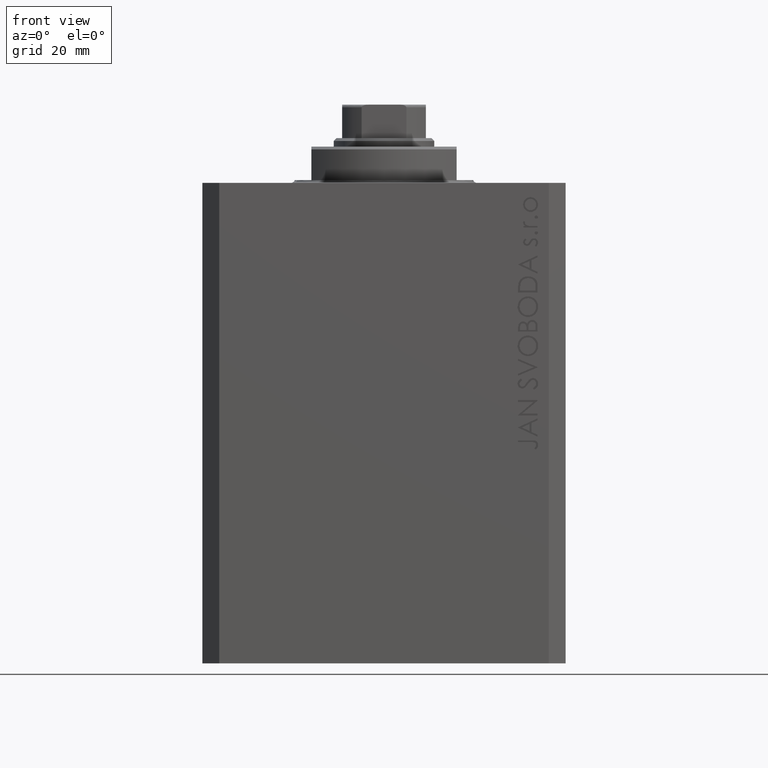
[diagram: clean part render]
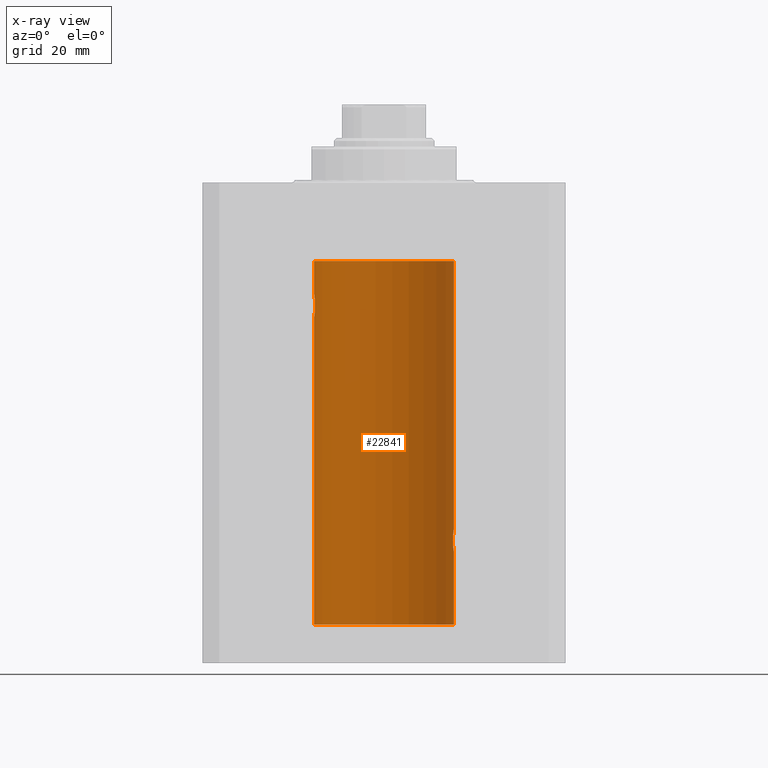
[diagram: x-ray — body ghosted, one internal face saturated and labeled with its STEP entity id]
A machine part, front view, then the same camera in x-ray: the body is ghosted and one INTERNAL B-rep face — a face not visible from any outside direction — is saturated and labeled: STEP entity #22841.
In plain terms, the highlighted cylindrical surface (partial cylindrical patch) has radius 12.5 mm, axis along (0, 0, 1).
Its self-contained STEP definition (entity closure, byte-faithful):
#9 = CARTESIAN_POINT ( 'NONE',  ( -12.46009879577771606, 1.003863686549169465, -23.73470742397611843 ) ) ;
#394 = EDGE_CURVE ( 'NONE', #12612, #40203, #45457, .T. ) ;
#573 = LINE ( 'NONE', #15351, #39610 ) ;
#1056 = CARTESIAN_POINT ( 'NONE',  ( 12.49788668346400300, 0.2632864803365712048, -62.01308975838333026 ) ) ;
#3327 = CARTESIAN_POINT ( 'NONE',  ( -12.33897869807161385, 1.999901172190678089, -21.73788193668374547 ) ) ;
#3564 = CARTESIAN_POINT ( 'NONE',  ( -12.33895470450623044, 2.000049200055401766, -22.12992629360264729 ) ) ;
#4030 = CARTESIAN_POINT ( 'NONE',  ( -12.43034574091277911, 1.321095788880539024, -23.50733550364322255 ) ) ;
#4167 = CARTESIAN_POINT ( 'NONE',  ( 12.35520276972935250, 1.897773362058238655, -63.35528278634336630 ) ) ;
#4258 = CARTESIAN_POINT ( 'NONE',  ( -12.35517291625592051, 1.897967064543089721, -22.64415233770293412 ) ) ;
#4660 = DIRECTION ( 'NONE',  ( 0.000000000000000000, 0.000000000000000000, 1.000000000000000000 ) ) ;
#5695 = EDGE_CURVE ( 'NONE', #17318, #22749, #45895, .T. ) ;
#5935 = VERTEX_POINT ( 'NONE', #33483 ) ;
#6613 = CARTESIAN_POINT ( 'NONE',  ( 12.50000000000000000, 0.000000000000000000, -13.99999999999999822 ) ) ;
#7138 = CARTESIAN_POINT ( 'NONE',  ( -12.40913174964213184, 1.507394620545641439, -23.32102833500698225 ) ) ;
#7604 = CARTESIAN_POINT ( 'NONE',  ( -12.44082361696003503, 1.219754986802281449, -20.40963319990594016 ) ) ;
#7831 = CARTESIAN_POINT ( 'NONE',  ( -12.46909283808506430, 0.8868029758979402155, -23.79742491916155345 ) ) ;
#7961 = CARTESIAN_POINT ( 'NONE',  ( 12.46910683544639120, 0.8866026273585023709, -62.20247863689696288 ) ) ;
#8459 = DIRECTION ( 'NONE',  ( 0.000000000000000000, 0.000000000000000000, 1.000000000000000000 ) ) ;
#8476 = CARTESIAN_POINT ( 'NONE',  ( 12.43016561391613095, 1.322713721413880661, -65.50578877836699121 ) ) ;
#8570 = VERTEX_POINT ( 'NONE', #14244 ) ;
#8672 = CARTESIAN_POINT ( 'NONE',  ( 12.40916530024876785, 1.507117913375715768, -62.67865955049006743 ) ) ;
#10737 = CARTESIAN_POINT ( 'NONE',  ( -12.48390768591463207, 0.6455696738844916016, -20.10252270298193977 ) ) ;
#10965 = CARTESIAN_POINT ( 'NONE',  ( -12.49789934882883458, 0.2624928479599910047, -20.01301208516349917 ) ) ;
#11605 = CARTESIAN_POINT ( 'NONE',  ( 12.37760587642916299, 1.747868572747719229, -65.00639653168998677 ) ) ;
#11709 = ORIENTED_EDGE ( 'NONE', *, *, #394, .T. ) ;
#11876 = AXIS2_PLACEMENT_3D ( 'NONE', #44319, #33566, #18987 ) ;
#12101 = AXIS2_PLACEMENT_3D ( 'NONE', #25933, #8459, #26867 ) ;
#12305 = CARTESIAN_POINT ( 'NONE',  ( 12.44079900692651108, 1.220007525301739948, -65.59017579083668181 ) ) ;
#12612 = VERTEX_POINT ( 'NONE', #15336 ) ;
#13670 = ORIENTED_EDGE ( 'NONE', *, *, #38098, .F. ) ;
#13713 = CARTESIAN_POINT ( 'NONE',  ( 12.33896267925302759, 2.000000000000247802, -64.00000000000000000 ) ) ;
#14072 = CARTESIAN_POINT ( 'NONE',  ( -12.37018026341338839, 1.797558627508998086, -22.88656313533016373 ) ) ;
#14207 = EDGE_CURVE ( 'NONE', #31801, #5935, #39259, .T. ) ;
#14244 = CARTESIAN_POINT ( 'NONE',  ( -12.50000000000000000, 1.530808498934191521E-15, -13.99999999999999822 ) ) ;
#14554 = CARTESIAN_POINT ( 'NONE',  ( -12.39873273758732175, 1.598680238462371062, -20.77033506126851137 ) ) ;
#15336 = CARTESIAN_POINT ( 'NONE',  ( 12.50000000000000000, 0.000000000000000000, -79.09999999999999432 ) ) ;
#15351 = CARTESIAN_POINT ( 'NONE',  ( -12.50000000000000000, 1.530808498934191521E-15, -79.09999999999999432 ) ) ;
#15879 = CARTESIAN_POINT ( 'NONE',  ( 12.48390005916862933, 0.6457215011736524568, -65.89742771554266199 ) ) ;
#16012 = EDGE_LOOP ( 'NONE', ( #13670, #30904, #11709, #27009, #21327, #29391, #36140, #27701, #35973 ) ) ;
#17318 = VERTEX_POINT ( 'NONE', #13713 ) ;
#17814 = CARTESIAN_POINT ( 'NONE',  ( 12.50000000000000000, -7.266355570171783942E-23, -62.00000000000000711 ) ) ;
#17874 = CARTESIAN_POINT ( 'NONE',  ( -12.44076681548080288, 1.220297236145718944, -23.58991408680628155 ) ) ;
#18115 = CARTESIAN_POINT ( 'NONE',  ( -12.34922241902463114, 1.935814255713574239, -22.51937350851555308 ) ) ;
#18582 = CARTESIAN_POINT ( 'NONE',  ( -12.49788564268284041, 0.2633501011236127343, -23.98690384766255335 ) ) ;
#18716 = CARTESIAN_POINT ( 'NONE',  ( 12.33896267925302581, 2.000000000000248246, -63.86934705949917657 ) ) ;
#18804 = CARTESIAN_POINT ( 'NONE',  ( -12.34781876294798053, 1.947190906025043633, -21.47436412829509678 ) ) ;
#18904 = VERTEX_POINT ( 'NONE', #6613 ) ;
#18987 = DIRECTION ( 'NONE',  ( 1.000000000000000000, 0.000000000000000000, 0.000000000000000000 ) ) ;
#19217 = DIRECTION ( 'NONE',  ( 1.000000000000000000, 0.000000000000000000, 0.000000000000000000 ) ) ;
#19223 = CARTESIAN_POINT ( 'NONE',  ( 12.49789833780794446, 0.2625555164371020100, -65.98698170822146380 ) ) ;
#19741 = AXIS2_PLACEMENT_3D ( 'NONE', #45006, #4660, #19217 ) ;
#21327 = ORIENTED_EDGE ( 'NONE', *, *, #5695, .T. ) ;
#21480 = CARTESIAN_POINT ( 'NONE',  ( -12.37922086519035325, 1.734998657226764829, -23.00335814299181436 ) ) ;
#22136 = CARTESIAN_POINT ( 'NONE',  ( 12.34779119491631150, 1.947363444907009411, -64.52502775168252924 ) ) ;
#22185 = CARTESIAN_POINT ( 'NONE',  ( -12.48983485452574982, 0.5201193324741355539, -23.93561774521849372 ) ) ;
#22323 = CARTESIAN_POINT ( 'NONE',  ( 12.37021546997940113, 1.797317011867403114, -63.11295119741077997 ) ) ;
#22408 = CARTESIAN_POINT ( 'NONE',  ( -12.50000000000000000, 1.867773856434666690E-17, -20.00000000000000000 ) ) ;
#22543 = CARTESIAN_POINT ( 'NONE',  ( 12.50000000000000355, 0.1306079576516675778, -62.00000000000000000 ) ) ;
#22572 = CYLINDRICAL_SURFACE ( 'NONE', #11876, 12.50000000000000000 ) ;
#22749 = VERTEX_POINT ( 'NONE', #17814 ) ;
#22779 = CARTESIAN_POINT ( 'NONE',  ( 12.34924836377099666, 1.935649219704934421, -63.48002062127162759 ) ) ;
#22841 = ADVANCED_FACE ( 'NONE', ( #33327 ), #22572, .F. ) ;
#22986 = DIRECTION ( 'NONE',  ( -0.000000000000000000, -0.000000000000000000, 1.000000000000000000 ) ) ;
#23241 = CARTESIAN_POINT ( 'NONE',  ( 12.39867611624532806, 1.590019252152828910, -62.77984495929611342 ) ) ;
#23492 = CARTESIAN_POINT ( 'NONE',  ( 12.50000000000000000, 0.000000000000000000, -79.09999999999999432 ) ) ;
#23722 = EDGE_CURVE ( 'NONE', #40203, #17318, #31902, .T. ) ;
#24644 = DIRECTION ( 'NONE',  ( -0.000000000000000000, -0.000000000000000000, 1.000000000000000000 ) ) ;
#25534 = CARTESIAN_POINT ( 'NONE',  ( -12.34109209020652465, 1.986986967296539897, -22.26269462454597914 ) ) ;
#25758 = CARTESIAN_POINT ( 'NONE',  ( -12.46903010196599304, 0.8876934327478135378, -20.20300788371381984 ) ) ;
#25933 = CARTESIAN_POINT ( 'NONE',  ( 0.000000000000000000, 0.000000000000000000, -13.99999999999999822 ) ) ;
#26391 = CARTESIAN_POINT ( 'NONE',  ( 12.50000000000000000, 0.000000000000000000, -79.09999999999999432 ) ) ;
#26433 = VECTOR ( 'NONE', #44310, 1000.000000000000000 ) ;
#26765 = EDGE_CURVE ( 'NONE', #12612, #38254, #34232, .T. ) ;
#26867 = DIRECTION ( 'NONE',  ( 1.000000000000000000, 0.000000000000000000, 0.000000000000000000 ) ) ;
#26883 = CARTESIAN_POINT ( 'NONE',  ( 12.39869754437268767, 1.598954131913722820, -65.22932152813012863 ) ) ;
#27009 = ORIENTED_EDGE ( 'NONE', *, *, #23722, .T. ) ;
#27701 = ORIENTED_EDGE ( 'NONE', *, *, #37930, .F. ) ;
#28475 = LINE ( 'NONE', #39925, #41901 ) ;
#28653 = CARTESIAN_POINT ( 'NONE',  ( -12.48990118705761532, 0.5184196815546056047, -20.06395648222637007 ) ) ;
#29091 = VECTOR ( 'NONE', #34965, 1000.000000000000000 ) ;
#29391 = ORIENTED_EDGE ( 'NONE', *, *, #31694, .T. ) ;
#29768 = CARTESIAN_POINT ( 'NONE',  ( 12.50000000000000178, 0.1324055009716465781, -66.00000000000000000 ) ) ;
#29931 = CARTESIAN_POINT ( 'NONE',  ( 12.50000000000000000, 2.171296804141808658E-15, -66.00000000000000000 ) ) ;
#30186 = CARTESIAN_POINT ( 'NONE',  ( 12.50000000000000000, -7.266355570171783942E-23, -62.00000000000000711 ) ) ;
#30223 = CARTESIAN_POINT ( 'NONE',  ( 12.48989642018887913, 0.5185418732824254029, -65.93601292187608465 ) ) ;
#30904 = ORIENTED_EDGE ( 'NONE', *, *, #26765, .F. ) ;
#31694 = EDGE_CURVE ( 'NONE', #22749, #18904, #44755, .T. ) ;
#31801 = VERTEX_POINT ( 'NONE', #34729 ) ;
#31902 = B_SPLINE_CURVE_WITH_KNOTS ( 'NONE', 3,
 ( #37388, #29768, #19223, #30223, #15879, #44326, #33803, #12305, #8476, #26883, #11605, #22136, #40520, #36704 ),
 .UNSPECIFIED., .F., .F.,
 ( 4, 2, 2, 2, 2, 2, 4 ),
 ( 2.109579368922132354E-18, 0.0003915305205218100218, 0.0007830610410436179836, 0.001174591561565426108, 0.001566122082087234449, 0.002349183123130850481, 0.003132244164174466730 ),
 .UNSPECIFIED. ) ;
#32940 = CARTESIAN_POINT ( 'NONE',  ( -12.50000000000000000, 0.1323736289504353625, -20.00000000000000000 ) ) ;
#33163 = CARTESIAN_POINT ( 'NONE',  ( -12.50000000000000533, 0.1306394121199390135, -24.00000000000000711 ) ) ;
#33327 = FACE_OUTER_BOUND ( 'NONE', #16012, .T. ) ;
#33483 = CARTESIAN_POINT ( 'NONE',  ( -12.50000000000000000, 1.530808426276628993E-15, -23.99999999999999645 ) ) ;
#33538 = CARTESIAN_POINT ( 'NONE',  ( 12.48983962833819028, 0.5199974825204898288, -62.06435160808016605 ) ) ;
#33566 = DIRECTION ( 'NONE',  ( -0.000000000000000000, -0.000000000000000000, 1.000000000000000000 ) ) ;
#33803 = CARTESIAN_POINT ( 'NONE',  ( 12.46019522898365395, 1.002712894177336000, -65.73540896027600411 ) ) ;
#34231 = CARTESIAN_POINT ( 'NONE',  ( 12.46011632531799407, 1.003644408234884100, -62.26516799687671977 ) ) ;
#34232 = CIRCLE ( 'NONE', #19741, 12.50000000000000000 ) ;
#34729 = CARTESIAN_POINT ( 'NONE',  ( -12.50000000000000000, 1.867773856434666690E-17, -20.00000000000000000 ) ) ;
#34965 = DIRECTION ( 'NONE',  ( -0.000000000000000000, -0.000000000000000000, 1.000000000000000000 ) ) ;
#35973 = ORIENTED_EDGE ( 'NONE', *, *, #14207, .T. ) ;
#36051 = CARTESIAN_POINT ( 'NONE',  ( -12.43019346654084956, 1.322451657002078340, -20.49398366327208620 ) ) ;
#36140 = ORIENTED_EDGE ( 'NONE', *, *, #36722, .T. ) ;
#36704 = CARTESIAN_POINT ( 'NONE',  ( 12.33896267925302759, 2.000000000000247802, -64.00000000000000000 ) ) ;
#36722 = EDGE_CURVE ( 'NONE', #18904, #8570, #39575, .T. ) ;
#36751 = CARTESIAN_POINT ( 'NONE',  ( -12.39864157855465088, 1.590288205413973532, -23.21980790594580313 ) ) ;
#36883 = CARTESIAN_POINT ( 'NONE',  ( 12.43037348241797879, 1.320834183883838220, -62.49243837704295856 ) ) ;
#36972 = CARTESIAN_POINT ( 'NONE',  ( -12.48394649977302073, 0.6448065707253024526, -23.89773031393659153 ) ) ;
#37110 = CARTESIAN_POINT ( 'NONE',  ( 12.34110728646152033, 1.986893050944454897, -63.73661347764984697 ) ) ;
#37352 = CARTESIAN_POINT ( 'NONE',  ( 12.33896267925302759, 2.000000000000247802, -64.00000000000000000 ) ) ;
#37388 = CARTESIAN_POINT ( 'NONE',  ( 12.50000000000000000, 2.171296804141808658E-15, -66.00000000000000000 ) ) ;
#37930 = EDGE_CURVE ( 'NONE', #31801, #8570, #573, .T. ) ;
#38098 = EDGE_CURVE ( 'NONE', #38254, #5935, #28475, .T. ) ;
#38254 = VERTEX_POINT ( 'NONE', #44889 ) ;
#39259 = B_SPLINE_CURVE_WITH_KNOTS ( 'NONE', 3,
 ( #22408, #32940, #10965, #28653, #10737, #25758, #40337, #7604, #36051, #14554, #46769, #18804, #3327, #3564, #25534, #18115, #4258, #14072, #21480, #36751, #7138, #4030, #17874, #9, #7831, #36972, #22185, #18582, #33163, #43206 ),
 .UNSPECIFIED., .F., .F.,
 ( 4, 2, 2, 2, 2, 2, 2, 2, 2, 2, 2, 2, 2, 2, 4 ),
 ( 1.814683826656258666E-20, 0.0003914362731607577369, 0.0007828725463215154739, 0.001174308819482273265, 0.001565745092643030948, 0.002348617638964546530, 0.003131490185286061895, 0.003522926458446825216, 0.003914362731607588103, 0.004305799004768351423, 0.004697235277929114744, 0.005088671551089878065, 0.005480107824250641385, 0.005871544097411404706, 0.006262980370572168026 ),
 .UNSPECIFIED. ) ;
#39575 = CIRCLE ( 'NONE', #12101, 12.50000000000000000 ) ;
#39610 = VECTOR ( 'NONE', #22986, 1000.000000000000000 ) ;
#39925 = CARTESIAN_POINT ( 'NONE',  ( -12.50000000000000000, 1.530808498934191521E-15, -79.09999999999999432 ) ) ;
#40203 = VERTEX_POINT ( 'NONE', #29931 ) ;
#40337 = CARTESIAN_POINT ( 'NONE',  ( -12.46021263690096958, 1.002494658017156981, -20.26446744561863156 ) ) ;
#40520 = CARTESIAN_POINT ( 'NONE',  ( 12.33896267925302759, 2.000000000000248246, -64.26143174220787557 ) ) ;
#40701 = CARTESIAN_POINT ( 'NONE',  ( 12.44079117518645639, 1.220047488436369232, -62.40989676335084368 ) ) ;
#41172 = CARTESIAN_POINT ( 'NONE',  ( 12.37925647381943506, 1.734744884174218571, -62.99620732598647521 ) ) ;
#41901 = VECTOR ( 'NONE', #24644, 1000.000000000000000 ) ;
#43206 = CARTESIAN_POINT ( 'NONE',  ( -12.50000000000000000, 1.530808426276628993E-15, -23.99999999999999645 ) ) ;
#44310 = DIRECTION ( 'NONE',  ( -0.000000000000000000, -0.000000000000000000, 1.000000000000000000 ) ) ;
#44319 = CARTESIAN_POINT ( 'NONE',  ( 0.000000000000000000, 0.000000000000000000, -79.09999999999999432 ) ) ;
#44326 = CARTESIAN_POINT ( 'NONE',  ( 12.46901623405143944, 0.8878913781257876670, -65.79689651717549737 ) ) ;
#44755 = LINE ( 'NONE', #26391, #26433 ) ;
#44889 = CARTESIAN_POINT ( 'NONE',  ( -12.50000000000000000, 1.530808498934191521E-15, -79.09999999999999432 ) ) ;
#44972 = CARTESIAN_POINT ( 'NONE',  ( 12.48395395845270350, 0.6446573166014684109, -62.10222124213517247 ) ) ;
#45006 = CARTESIAN_POINT ( 'NONE',  ( 0.000000000000000000, 0.000000000000000000, -79.09999999999999432 ) ) ;
#45457 = LINE ( 'NONE', #23492, #29091 ) ;
#45895 = B_SPLINE_CURVE_WITH_KNOTS ( 'NONE', 3,
 ( #37352, #18716, #37110, #22779, #4167, #22323, #41172, #23241, #8672, #36883, #40701, #34231, #7961, #44972, #33538, #1056, #22543, #30186 ),
 .UNSPECIFIED., .F., .F.,
 ( 4, 2, 2, 2, 2, 2, 2, 2, 4 ),
 ( 0.003132244164174466730, 0.003523586189974248998, 0.003914928215774031266, 0.004306270241573813100, 0.004697612267373595801, 0.005088954293173362890, 0.005480296318973130847, 0.005871638344772898803, 0.006262980370572665892 ),
 .UNSPECIFIED. ) ;
#46769 = CARTESIAN_POINT ( 'NONE',  ( -12.37764291807175354, 1.747608771958140794, -20.99316879552500481 ) ) ;